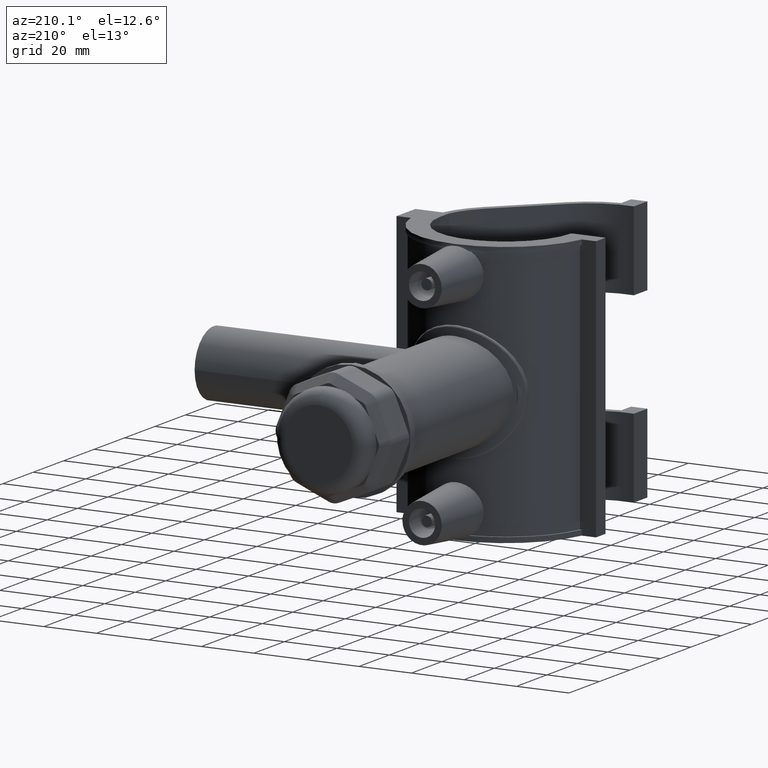
[diagram: clean part render]
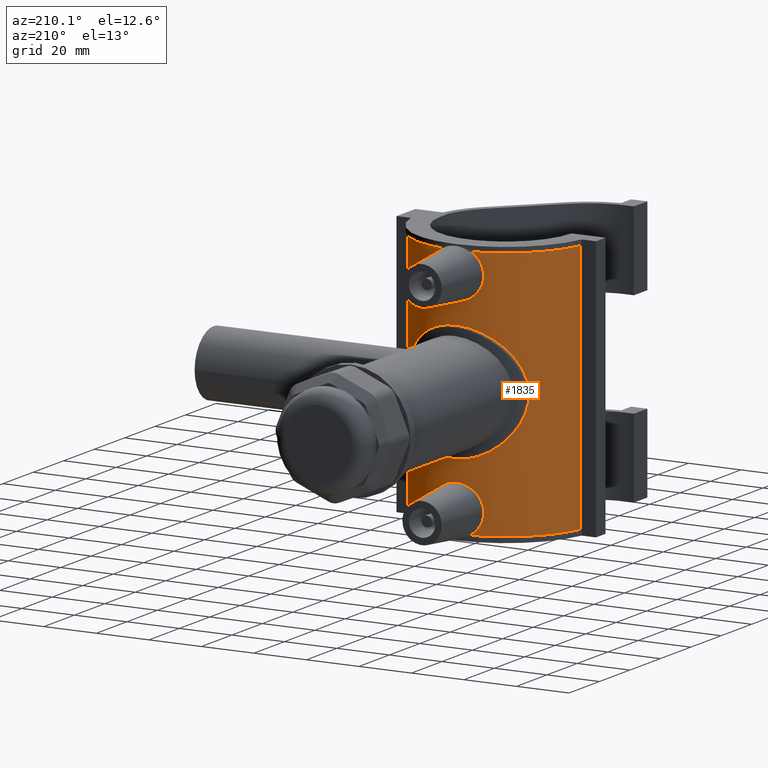
[diagram: same view with one face highlighted and labeled with its STEP entity id]
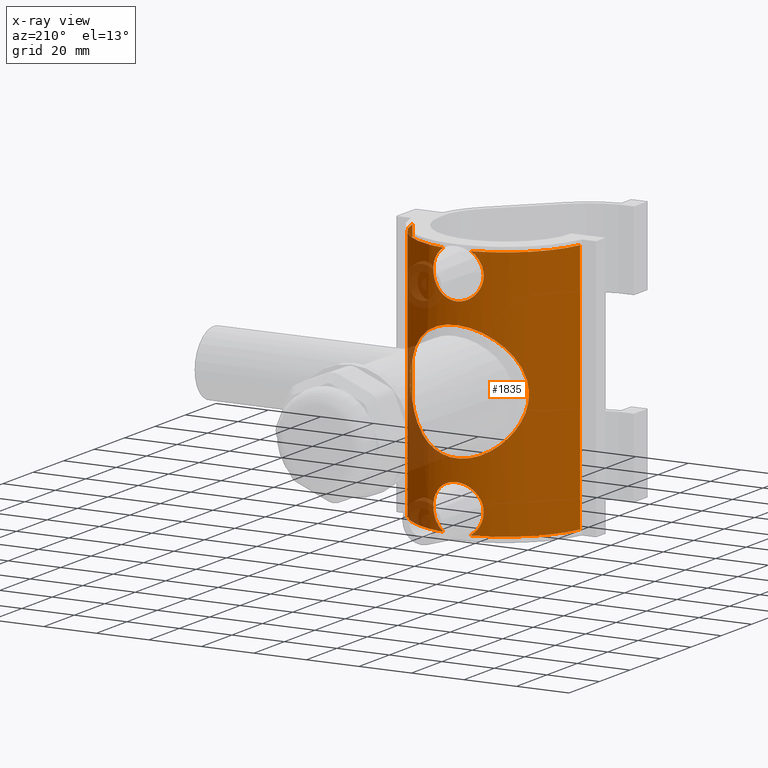
[diagram: x-ray of the same camera — body ghosted, the highlighted face saturated]
A machine part, auxiliary view. The second image highlights one B-rep face of the part: STEP entity #1835.
The next image is the same camera in x-ray: the body ghosted, the highlighted face saturated — about 9% of this face is hidden behind the body in this view.
In plain terms, the highlighted cylindrical surface (partial cylindrical patch) has radius 32.5 mm, axis along (0, 0, 1).
Its self-contained STEP definition (entity closure, byte-faithful):
#100=LINE('',#3349,#244);
#111=LINE('',#3434,#255);
#244=VECTOR('',#2367,96.);
#255=VECTOR('',#2400,96.);
#439=CIRCLE('',#1975,32.5);
#440=CIRCLE('',#1977,32.5);
#445=CIRCLE('',#1986,32.5);
#446=CIRCLE('',#1988,32.5);
#499=FACE_BOUND('',#718,.T.);
#583=FACE_OUTER_BOUND('',#717,.T.);
#717=EDGE_LOOP('',(#1566,#1567,#1568,#1569,#1570,#1571,#1572,#1573,#1574,
#1575));
#718=EDGE_LOOP('',(#1576,#1577));
#751=B_SPLINE_CURVE_WITH_KNOTS('',3,(#2731,#2732,#2733,#2734,#2735,#2736,
#2737,#2738,#2739,#2740),.UNSPECIFIED.,.F.,.F.,(4,2,2,2,4),(2.0009472638146,
2.32173297305187,2.69324347755006,3.06475398204825,3.38553969128552),
 .UNSPECIFIED.);
#762=B_SPLINE_CURVE_WITH_KNOTS('',3,(#3247,#3248,#3249,#3250,#3251,#3252,
#3253,#3254,#3255,#3256,#3257,#3258,#3259,#3260,#3261,#3262,#3263,#3264,
#3265,#3266,#3267,#3268,#3269,#3270,#3271,#3272,#3273,#3274,#3275,#3276,
#3277,#3278,#3279,#3280,#3281,#3282,#3283,#3284,#3285,#3286,#3287,#3288,
#3289,#3290,#3291,#3292,#3293,#3294,#3295,#3296,#3297,#3298,#3299,#3300,
#3301,#3302,#3303,#3304,#3305,#3306,#3307,#3308),.UNSPECIFIED.,.F.,.F.,
(4,2,2,2,2,2,2,2,2,2,2,2,2,2,2,2,2,2,2,2,2,2,2,2,2,2,2,2,2,2,4),(0.657753552431103,
0.892655156686813,1.33898273503022,1.78531031337363,2.22563767284297,2.66596503231231,
3.10629239178164,3.54661975125098,3.98694711072032,4.42727447018966,4.867601829659,
5.30792918912834,5.75425676747175,6.20058434581515,6.64691192415856,7.09323950250197,
7.53956708084537,7.98589465918878,8.43222223753219,8.87854981587559,9.31887717534493,
9.75920453481427,10.1995318942836,10.639859253753,11.0801866132223,11.5205139726916,
11.960841332161,12.4011686916303,12.8474962699737,13.2938238483171,13.5287254525728),
 .UNSPECIFIED.);
#764=B_SPLINE_CURVE_WITH_KNOTS('',3,(#3361,#3362,#3363,#3364,#3365,#3366,
#3367,#3368,#3369,#3370,#3371,#3372,#3373,#3374,#3375,#3376,#3377,#3378,
#3379,#3380,#3381,#3382,#3383,#3384),.UNSPECIFIED.,.F.,.F.,(4,2,2,2,2,2,
2,2,2,2,2,4),(0.,0.362047899468712,0.724095798937425,1.08486680070372,1.44563780247002,
1.80640880423631,2.16717980600261,2.52922770547132,2.89127560494004,3.25332350440875,
3.61537140387746,3.81859572748109),.UNSPECIFIED.);
#765=B_SPLINE_CURVE_WITH_KNOTS('',3,(#3385,#3386,#3387,#3388,#3389,#3390,
#3391,#3392),.UNSPECIFIED.,.F.,.F.,(4,2,2,4),(4.85523108733587,5.05845541094265,
5.42050331041136,5.78255120988007),.UNSPECIFIED.);
#767=B_SPLINE_CURVE_WITH_KNOTS('',3,(#3437,#3438,#3439,#3440,#3441,#3442,
#3443,#3444),.UNSPECIFIED.,.F.,.F.,(4,2,2,4),(2.89127560494004,3.25332350440875,
3.61537140387746,3.81859572748109),.UNSPECIFIED.);
#768=B_SPLINE_CURVE_WITH_KNOTS('',3,(#3445,#3446,#3447,#3448,#3449,#3450,
#3451,#3452,#3453,#3454,#3455,#3456,#3457,#3458,#3459,#3460,#3461,#3462,
#3463,#3464,#3465,#3466,#3467,#3468,#3469),.UNSPECIFIED.,.F.,.F.,(4,2,2,
3,2,2,2,2,2,2,2,4),(4.85523108733587,5.05845541094265,5.42050331041136,
5.78255120988007,6.14459910934878,6.5066470088175,6.86741801058379,7.22818901235009,
7.58896001411639,7.94973101588268,8.3117789153514,8.67382681482011),
 .UNSPECIFIED.);
#775=VERTEX_POINT('',#2723);
#776=VERTEX_POINT('',#2730);
#856=VERTEX_POINT('',#3311);
#858=VERTEX_POINT('',#3317);
#859=VERTEX_POINT('',#3321);
#861=VERTEX_POINT('',#3326);
#865=VERTEX_POINT('',#3348);
#870=VERTEX_POINT('',#3360);
#873=VERTEX_POINT('',#3397);
#874=VERTEX_POINT('',#3404);
#876=VERTEX_POINT('',#3409);
#881=VERTEX_POINT('',#3436);
#949=EDGE_CURVE('',#776,#775,#751,.T.);
#1074=EDGE_CURVE('',#775,#776,#762,.T.);
#1078=EDGE_CURVE('',#856,#858,#439,.T.);
#1080=EDGE_CURVE('',#861,#859,#440,.T.);
#1087=EDGE_CURVE('',#865,#861,#100,.T.);
#1093=EDGE_CURVE('',#870,#856,#764,.T.);
#1094=EDGE_CURVE('',#859,#870,#765,.T.);
#1098=EDGE_CURVE('',#873,#865,#445,.T.);
#1100=EDGE_CURVE('',#876,#874,#446,.T.);
#1109=EDGE_CURVE('',#876,#858,#111,.T.);
#1110=EDGE_CURVE('',#881,#873,#767,.T.);
#1111=EDGE_CURVE('',#874,#881,#768,.T.);
#1566=ORIENTED_EDGE('',*,*,#1078,.T.);
#1567=ORIENTED_EDGE('',*,*,#1109,.F.);
#1568=ORIENTED_EDGE('',*,*,#1100,.T.);
#1569=ORIENTED_EDGE('',*,*,#1111,.T.);
#1570=ORIENTED_EDGE('',*,*,#1110,.T.);
#1571=ORIENTED_EDGE('',*,*,#1098,.T.);
#1572=ORIENTED_EDGE('',*,*,#1087,.T.);
#1573=ORIENTED_EDGE('',*,*,#1080,.T.);
#1574=ORIENTED_EDGE('',*,*,#1094,.T.);
#1575=ORIENTED_EDGE('',*,*,#1093,.T.);
#1576=ORIENTED_EDGE('',*,*,#949,.T.);
#1577=ORIENTED_EDGE('',*,*,#1074,.T.);
#1744=CYLINDRICAL_SURFACE('',#2020,32.5);
#1835=ADVANCED_FACE('',(#583,#499),#1744,.T.);
#1975=AXIS2_PLACEMENT_3D('',#3319,#2350,#2351);
#1977=AXIS2_PLACEMENT_3D('',#3327,#2354,#2355);
#1986=AXIS2_PLACEMENT_3D('',#3402,#2381,#2382);
#1988=AXIS2_PLACEMENT_3D('',#3410,#2385,#2386);
#2020=AXIS2_PLACEMENT_3D('',#3525,#2467,#2468);
#2350=DIRECTION('center_axis',(0.,0.,1.));
#2351=DIRECTION('ref_axis',(1.,0.,0.));
#2354=DIRECTION('center_axis',(0.,0.,1.));
#2355=DIRECTION('ref_axis',(1.,0.,0.));
#2367=DIRECTION('',(0.,0.,-1.));
#2381=DIRECTION('center_axis',(0.,0.,-1.));
#2382=DIRECTION('ref_axis',(1.,0.,0.));
#2385=DIRECTION('center_axis',(0.,0.,-1.));
#2386=DIRECTION('ref_axis',(1.,0.,0.));
#2400=DIRECTION('',(0.,0.,-1.));
#2467=DIRECTION('center_axis',(0.,0.,1.));
#2468=DIRECTION('ref_axis',(1.,0.,0.));
#2723=CARTESIAN_POINT('',(21.5289660943458,24.3465319688146,6.538625154305));
#2730=CARTESIAN_POINT('',(21.5289660943458,24.3465319688146,-6.53862515430502));
#2731=CARTESIAN_POINT('Ctrl Pts',(21.5289660943458,24.3465319688146,-6.53862515430502));
#2732=CARTESIAN_POINT('Ctrl Pts',(22.0836351960094,23.8560533947576,-5.73948195747303));
#2733=CARTESIAN_POINT('Ctrl Pts',(22.5576871153008,23.4011675118858,-4.78496266854209));
#2734=CARTESIAN_POINT('Ctrl Pts',(23.2663038143748,22.6983682143979,-2.54970100541634));
#2735=CARTESIAN_POINT('Ctrl Pts',(23.4520787991172,22.5,-1.2383683483273));
#2736=CARTESIAN_POINT('Ctrl Pts',(23.4520787991172,22.5,1.23836834832731));
#2737=CARTESIAN_POINT('Ctrl Pts',(23.2663038143748,22.6983682143979,2.54970100541634));
#2738=CARTESIAN_POINT('Ctrl Pts',(22.5576871153008,23.4011675118858,4.78496266854208));
#2739=CARTESIAN_POINT('Ctrl Pts',(22.0836351960094,23.8560533947576,5.73948195747301));
#2740=CARTESIAN_POINT('Ctrl Pts',(21.5289660943458,24.3465319688146,6.538625154305));
#3247=CARTESIAN_POINT('Ctrl Pts',(21.5289660943458,24.3465319688146,6.53862515430499));
#3248=CARTESIAN_POINT('Ctrl Pts',(21.2995391339297,24.5494078962055,7.29403246629529));
#3249=CARTESIAN_POINT('Ctrl Pts',(21.0309106219949,24.7811893951175,8.03516562164723));
#3250=CARTESIAN_POINT('Ctrl Pts',(20.147164322922,25.512874705654,10.1269630174168));
#3251=CARTESIAN_POINT('Ctrl Pts',(19.4359067364272,26.0669095433927,11.4281429797974));
#3252=CARTESIAN_POINT('Ctrl Pts',(17.8064018001484,27.2060709895802,13.8307258560493));
#3253=CARTESIAN_POINT('Ctrl Pts',(16.8876812187161,27.7905307185321,14.9321239346785));
#3254=CARTESIAN_POINT('Ctrl Pts',(14.945268732686,28.881009975497,16.8745364207086));
#3255=CARTESIAN_POINT('Ctrl Pts',(13.851062690891,29.4295707864864,17.7907025978032));
#3256=CARTESIAN_POINT('Ctrl Pts',(11.4478930364804,30.4449884110935,19.4243862655128));
#3257=CARTESIAN_POINT('Ctrl Pts',(10.1387631948868,30.9113074756575,20.1419934198875));
#3258=CARTESIAN_POINT('Ctrl Pts',(7.37882860695121,31.6836921446332,21.308386282405));
#3259=CARTESIAN_POINT('Ctrl Pts',(5.92503264948649,31.9901452901852,21.7581366019244));
#3260=CARTESIAN_POINT('Ctrl Pts',(2.96953831224904,32.3984143101556,22.3540681424165));
#3261=CARTESIAN_POINT('Ctrl Pts',(1.4677578648978,32.5,22.5));
#3262=CARTESIAN_POINT('Ctrl Pts',(-1.4677578648978,32.5,22.5));
#3263=CARTESIAN_POINT('Ctrl Pts',(-2.96953831224903,32.3984143101556,22.3540681424165));
#3264=CARTESIAN_POINT('Ctrl Pts',(-5.92503264948648,31.9901452901852,21.7581366019244));
#3265=CARTESIAN_POINT('Ctrl Pts',(-7.37882860695121,31.6836921446332,21.308386282405));
#3266=CARTESIAN_POINT('Ctrl Pts',(-10.1387631948868,30.9113074756575,20.1419934198875));
#3267=CARTESIAN_POINT('Ctrl Pts',(-11.4478930364804,30.4449884110935,19.4243862655128));
#3268=CARTESIAN_POINT('Ctrl Pts',(-13.851062690891,29.4295707864864,17.7907025978032));
#3269=CARTESIAN_POINT('Ctrl Pts',(-14.945268732686,28.881009975497,16.8745364207086));
#3270=CARTESIAN_POINT('Ctrl Pts',(-16.8876812187161,27.7905307185321,14.9321239346785));
#3271=CARTESIAN_POINT('Ctrl Pts',(-17.8064018001484,27.2060709895802,13.8307258560493));
#3272=CARTESIAN_POINT('Ctrl Pts',(-19.4359067364272,26.0669095433927,11.4281429797974));
#3273=CARTESIAN_POINT('Ctrl Pts',(-20.147164322922,25.512874705654,10.1269630174168));
#3274=CARTESIAN_POINT('Ctrl Pts',(-21.3051897147005,24.5541038804958,7.38595634921514));
#3275=CARTESIAN_POINT('Ctrl Pts',(-21.7529613714861,24.1500335136266,5.94322521860863));
#3276=CARTESIAN_POINT('Ctrl Pts',(-22.3505515771082,23.5980569779647,2.99434411500661));
#3277=CARTESIAN_POINT('Ctrl Pts',(-22.5,23.4520787991172,1.48775859447802));
#3278=CARTESIAN_POINT('Ctrl Pts',(-22.5,23.4520787991172,-1.48775859447802));
#3279=CARTESIAN_POINT('Ctrl Pts',(-22.3505515771082,23.5980569779647,-2.99434411500662));
#3280=CARTESIAN_POINT('Ctrl Pts',(-21.7529613714861,24.1500335136266,-5.94322521860863));
#3281=CARTESIAN_POINT('Ctrl Pts',(-21.3051897147005,24.5541038804958,-7.38595634921514));
#3282=CARTESIAN_POINT('Ctrl Pts',(-20.147164322922,25.512874705654,-10.1269630174168));
#3283=CARTESIAN_POINT('Ctrl Pts',(-19.4359067364272,26.0669095433927,-11.4281429797974));
#3284=CARTESIAN_POINT('Ctrl Pts',(-17.8064018001484,27.2060709895802,-13.8307258560493));
#3285=CARTESIAN_POINT('Ctrl Pts',(-16.8876812187161,27.7905307185321,-14.9321239346785));
#3286=CARTESIAN_POINT('Ctrl Pts',(-14.945268732686,28.8810099754969,-16.8745364207086));
#3287=CARTESIAN_POINT('Ctrl Pts',(-13.851062690891,29.4295707864864,-17.7907025978032));
#3288=CARTESIAN_POINT('Ctrl Pts',(-11.4478930364804,30.4449884110935,-19.4243862655128));
#3289=CARTESIAN_POINT('Ctrl Pts',(-10.1387631948868,30.9113074756575,-20.1419934198875));
#3290=CARTESIAN_POINT('Ctrl Pts',(-7.37882860695121,31.6836921446332,-21.308386282405));
#3291=CARTESIAN_POINT('Ctrl Pts',(-5.92503264948649,31.9901452901852,-21.7581366019244));
#3292=CARTESIAN_POINT('Ctrl Pts',(-2.96953831224904,32.3984143101556,-22.3540681424165));
#3293=CARTESIAN_POINT('Ctrl Pts',(-1.4677578648978,32.5,-22.5));
#3294=CARTESIAN_POINT('Ctrl Pts',(1.46775786489779,32.5,-22.5));
#3295=CARTESIAN_POINT('Ctrl Pts',(2.96953831224903,32.3984143101556,-22.3540681424165));
#3296=CARTESIAN_POINT('Ctrl Pts',(5.92503264948648,31.9901452901852,-21.7581366019244));
#3297=CARTESIAN_POINT('Ctrl Pts',(7.37882860695121,31.6836921446332,-21.308386282405));
#3298=CARTESIAN_POINT('Ctrl Pts',(10.1387631948868,30.9113074756575,-20.1419934198875));
#3299=CARTESIAN_POINT('Ctrl Pts',(11.4478930364804,30.4449884110935,-19.4243862655128));
#3300=CARTESIAN_POINT('Ctrl Pts',(13.851062690891,29.4295707864864,-17.7907025978032));
#3301=CARTESIAN_POINT('Ctrl Pts',(14.945268732686,28.881009975497,-16.8745364207086));
#3302=CARTESIAN_POINT('Ctrl Pts',(16.8876812187161,27.7905307185321,-14.9321239346785));
#3303=CARTESIAN_POINT('Ctrl Pts',(17.8064018001484,27.2060709895802,-13.8307258560493));
#3304=CARTESIAN_POINT('Ctrl Pts',(19.4359067364272,26.0669095433927,-11.4281429797974));
#3305=CARTESIAN_POINT('Ctrl Pts',(20.147164322922,25.512874705654,-10.1269630174168));
#3306=CARTESIAN_POINT('Ctrl Pts',(21.0309106219949,24.7811893951175,-8.03516562164724));
#3307=CARTESIAN_POINT('Ctrl Pts',(21.2995391339297,24.5494078962055,-7.2940324662953));
#3308=CARTESIAN_POINT('Ctrl Pts',(21.5289660943458,24.3465319688146,-6.53862515430502));
#3311=CARTESIAN_POINT('',(-5.13117896250066,32.0923823119255,-48.));
#3317=CARTESIAN_POINT('',(-31.8933770554327,6.25,-48.));
#3319=CARTESIAN_POINT('Origin',(0.,0.,-48.));
#3321=CARTESIAN_POINT('',(5.13117896250066,32.0923823119255,-48.));
#3326=CARTESIAN_POINT('',(31.8933770554327,6.25,-48.));
#3327=CARTESIAN_POINT('Origin',(0.,0.,-48.));
#3348=CARTESIAN_POINT('',(31.8933770554327,6.25,48.));
#3349=CARTESIAN_POINT('',(31.8933770554327,6.25,0.));
#3360=CARTESIAN_POINT('',(9.59524244594183,31.0512692559193,-40.));
#3361=CARTESIAN_POINT('Ctrl Pts',(9.59524244594183,31.0512692559193,-40.));
#3362=CARTESIAN_POINT('Ctrl Pts',(9.59524244594183,31.0512692559193,-38.7931736684376));
#3363=CARTESIAN_POINT('Ctrl Pts',(9.3470231898562,31.1311666751305,-37.5134816777897));
#3364=CARTESIAN_POINT('Ctrl Pts',(8.35380569471185,31.412263489831,-35.1737633631997));
#3365=CARTESIAN_POINT('Ctrl Pts',(7.60928976109968,31.6086786532308,-34.1129600502947));
#3366=CARTESIAN_POINT('Ctrl Pts',(5.90699332981886,31.9704853933175,-32.446684726768));
#3367=CARTESIAN_POINT('Ctrl Pts',(4.83429941664471,32.1602272677186,-31.7260732041943));
#3368=CARTESIAN_POINT('Ctrl Pts',(2.48234605122766,32.4266653583976,-30.76831513355));
#3369=CARTESIAN_POINT('Ctrl Pts',(1.20257000588766,32.5,-30.5315050706667));
#3370=CARTESIAN_POINT('Ctrl Pts',(-1.20257000588765,32.5,-30.5315050706667));
#3371=CARTESIAN_POINT('Ctrl Pts',(-2.48234605122766,32.4266653583976,-30.76831513355));
#3372=CARTESIAN_POINT('Ctrl Pts',(-4.83429941664471,32.1602272677186,-31.7260732041943));
#3373=CARTESIAN_POINT('Ctrl Pts',(-5.90699332981886,31.9704853933175,-32.446684726768));
#3374=CARTESIAN_POINT('Ctrl Pts',(-7.60928976109968,31.6086786532308,-34.1129600502947));
#3375=CARTESIAN_POINT('Ctrl Pts',(-8.35380569471185,31.412263489831,-35.1737633631997));
#3376=CARTESIAN_POINT('Ctrl Pts',(-9.3470231898562,31.1311666751305,-37.5134816777897));
#3377=CARTESIAN_POINT('Ctrl Pts',(-9.59524244594183,31.0512692559193,-38.7931736684376));
#3378=CARTESIAN_POINT('Ctrl Pts',(-9.59524244594183,31.0512692559193,-41.2068263315624));
#3379=CARTESIAN_POINT('Ctrl Pts',(-9.3470231898562,31.1311666751305,-42.4865183222104));
#3380=CARTESIAN_POINT('Ctrl Pts',(-8.35380569471185,31.412263489831,-44.8262366368003));
#3381=CARTESIAN_POINT('Ctrl Pts',(-7.60928976109968,31.6086786532308,-45.8870399497053));
#3382=CARTESIAN_POINT('Ctrl Pts',(-6.27802838097515,31.8916254604351,-47.1901314360668));
#3383=CARTESIAN_POINT('Ctrl Pts',(-5.73018665567346,31.9966083165979,-47.6257526220462));
#3384=CARTESIAN_POINT('Ctrl Pts',(-5.13117896251543,32.0923823119232,-47.9999999999908));
#3385=CARTESIAN_POINT('Ctrl Pts',(5.13117896248757,32.0923823119276,-48.0000000000082));
#3386=CARTESIAN_POINT('Ctrl Pts',(5.73018665565645,31.9966083166012,-47.6257526220596));
#3387=CARTESIAN_POINT('Ctrl Pts',(6.27802838096772,31.8916254604366,-47.1901314360741));
#3388=CARTESIAN_POINT('Ctrl Pts',(7.60928976109968,31.6086786532308,-45.8870399497053));
#3389=CARTESIAN_POINT('Ctrl Pts',(8.35380569471185,31.412263489831,-44.8262366368003));
#3390=CARTESIAN_POINT('Ctrl Pts',(9.3470231898562,31.1311666751305,-42.4865183222104));
#3391=CARTESIAN_POINT('Ctrl Pts',(9.59524244594183,31.0512692559193,-41.2068263315624));
#3392=CARTESIAN_POINT('Ctrl Pts',(9.59524244594183,31.0512692559193,-40.));
#3397=CARTESIAN_POINT('',(5.13117896250066,32.0923823119255,48.));
#3402=CARTESIAN_POINT('Origin',(0.,0.,48.));
#3404=CARTESIAN_POINT('',(-5.13117896250066,32.0923823119255,48.));
#3409=CARTESIAN_POINT('',(-31.8933770554327,6.25,48.));
#3410=CARTESIAN_POINT('Origin',(0.,0.,48.));
#3434=CARTESIAN_POINT('',(-31.8933770554327,6.25,0.));
#3436=CARTESIAN_POINT('',(9.59524244594183,31.0512692559193,40.));
#3437=CARTESIAN_POINT('Ctrl Pts',(9.59524244594183,31.0512692559193,40.));
#3438=CARTESIAN_POINT('Ctrl Pts',(9.59524244594183,31.0512692559193,41.2068263315624));
#3439=CARTESIAN_POINT('Ctrl Pts',(9.3470231898562,31.1311666751305,42.4865183222104));
#3440=CARTESIAN_POINT('Ctrl Pts',(8.35380569471185,31.412263489831,44.8262366368003));
#3441=CARTESIAN_POINT('Ctrl Pts',(7.60928976109968,31.6086786532308,45.8870399497053));
#3442=CARTESIAN_POINT('Ctrl Pts',(6.27802838097515,31.8916254604351,47.1901314360668));
#3443=CARTESIAN_POINT('Ctrl Pts',(5.73018665567347,31.9966083165979,47.6257526220462));
#3444=CARTESIAN_POINT('Ctrl Pts',(5.13117896251544,32.0923823119232,47.9999999999908));
#3445=CARTESIAN_POINT('Ctrl Pts',(-5.13117896248756,32.0923823119276,48.0000000000082));
#3446=CARTESIAN_POINT('Ctrl Pts',(-5.73018665565644,31.9966083166012,47.6257526220596));
#3447=CARTESIAN_POINT('Ctrl Pts',(-6.27802838096772,31.8916254604366,47.1901314360741));
#3448=CARTESIAN_POINT('Ctrl Pts',(-7.60928976109968,31.6086786532308,45.8870399497053));
#3449=CARTESIAN_POINT('Ctrl Pts',(-8.35380569471185,31.412263489831,44.8262366368003));
#3450=CARTESIAN_POINT('Ctrl Pts',(-9.3470231898562,31.1311666751305,42.4865183222104));
#3451=CARTESIAN_POINT('Ctrl Pts',(-9.59524244594183,31.0512692559193,41.2068263315624));
#3452=CARTESIAN_POINT('Ctrl Pts',(-9.59524244594183,31.0512692559193,40.));
#3453=CARTESIAN_POINT('Ctrl Pts',(-9.59524244594183,31.0512692559193,38.7931736684376));
#3454=CARTESIAN_POINT('Ctrl Pts',(-9.3470231898562,31.1311666751305,37.5134816777897));
#3455=CARTESIAN_POINT('Ctrl Pts',(-8.35380569471185,31.412263489831,35.1737633631997));
#3456=CARTESIAN_POINT('Ctrl Pts',(-7.60928976109968,31.6086786532308,34.1129600502947));
#3457=CARTESIAN_POINT('Ctrl Pts',(-5.90699332981886,31.9704853933175,32.446684726768));
#3458=CARTESIAN_POINT('Ctrl Pts',(-4.83429941664471,32.1602272677186,31.7260732041943));
#3459=CARTESIAN_POINT('Ctrl Pts',(-2.48234605122766,32.4266653583976,30.76831513355));
#3460=CARTESIAN_POINT('Ctrl Pts',(-1.20257000588765,32.5,30.5315050706667));
#3461=CARTESIAN_POINT('Ctrl Pts',(1.20257000588766,32.5,30.5315050706667));
#3462=CARTESIAN_POINT('Ctrl Pts',(2.48234605122766,32.4266653583976,30.76831513355));
#3463=CARTESIAN_POINT('Ctrl Pts',(4.83429941664471,32.1602272677186,31.7260732041943));
#3464=CARTESIAN_POINT('Ctrl Pts',(5.90699332981886,31.9704853933175,32.446684726768));
#3465=CARTESIAN_POINT('Ctrl Pts',(7.60928976109968,31.6086786532308,34.1129600502947));
#3466=CARTESIAN_POINT('Ctrl Pts',(8.35380569471185,31.412263489831,35.1737633631997));
#3467=CARTESIAN_POINT('Ctrl Pts',(9.3470231898562,31.1311666751305,37.5134816777897));
#3468=CARTESIAN_POINT('Ctrl Pts',(9.59524244594183,31.0512692559193,38.7931736684376));
#3469=CARTESIAN_POINT('Ctrl Pts',(9.59524244594183,31.0512692559193,40.));
#3525=CARTESIAN_POINT('Origin',(0.,0.,0.));